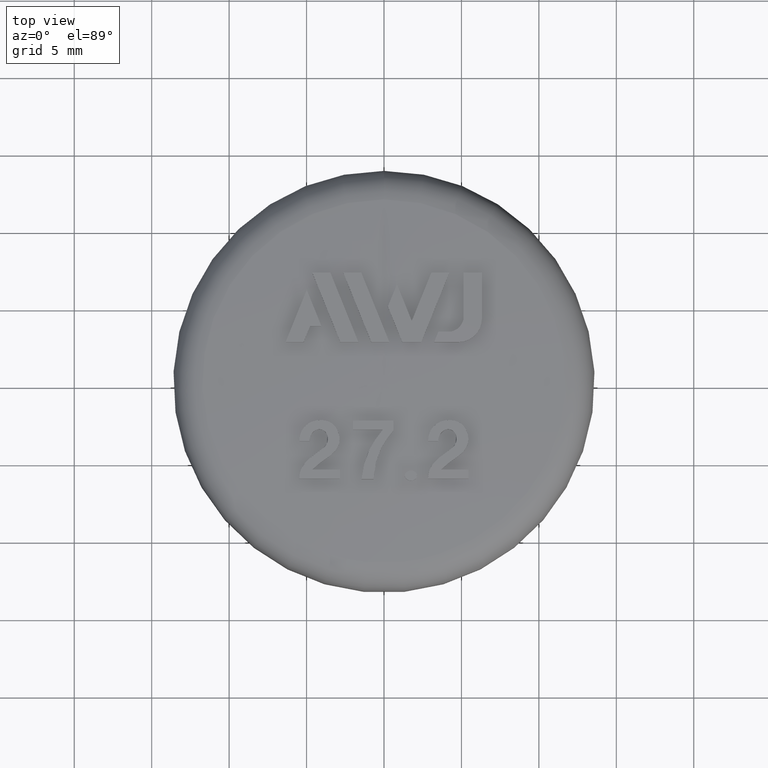
[diagram: clean part render]
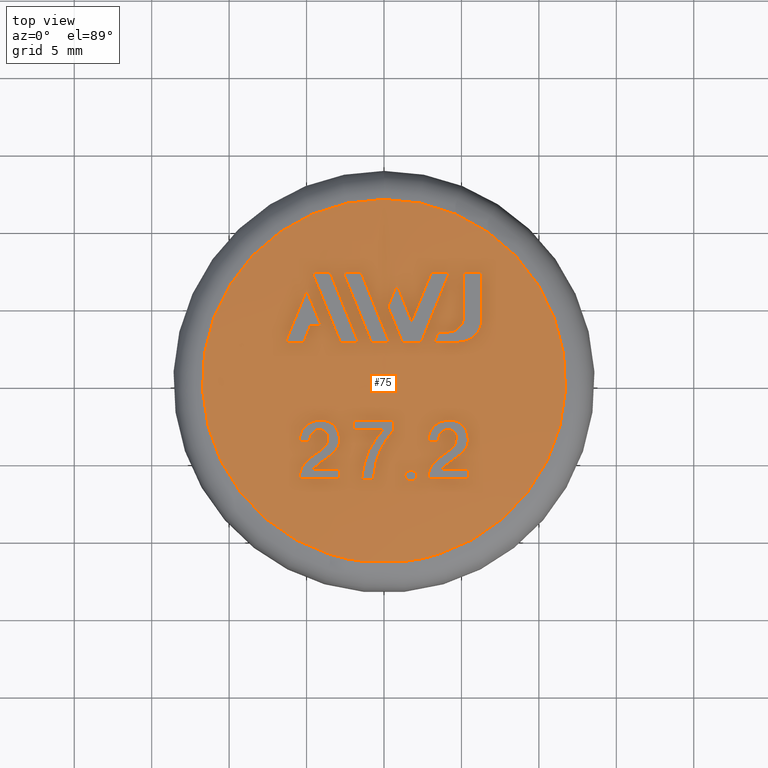
[diagram: same view with one face highlighted and labeled with its STEP entity id]
A machine part, top view. The second image highlights one B-rep face of the part: STEP entity #75.
In plain terms, the highlighted face is a freeform B-spline surface patch.
Its self-contained STEP definition (entity closure, byte-faithful):
#75 = ADVANCED_FACE( '', ( #158, #159, #160, #161, #162, #163, #164, #165, #166, #167, #168 ), #169, .T. );
#158 = FACE_BOUND( '', #356, .T. );
#159 = FACE_BOUND( '', #357, .T. );
#160 = FACE_BOUND( '', #358, .T. );
#161 = FACE_BOUND( '', #359, .T. );
#162 = FACE_BOUND( '', #360, .T. );
#163 = FACE_OUTER_BOUND( '', #361, .T. );
#164 = FACE_BOUND( '', #362, .T. );
#165 = FACE_BOUND( '', #363, .T. );
#166 = FACE_BOUND( '', #364, .T. );
#167 = FACE_BOUND( '', #365, .T. );
#168 = FACE_BOUND( '', #366, .T. );
#169 = ( B_SPLINE_SURFACE( 3, 3, ( ( #368, #369, #370, #371, #372, #373, #374 ), ( #375, #376, #377, #378, #379, #380, #381 ), ( #382, #383, #384, #385, #386, #387, #388 ), ( #389, #390, #391, #392, #393, #394, #395 ) ), .UNSPECIFIED., .F., .T., .F. )B_SPLINE_SURFACE_WITH_KNOTS( ( 4, 4 ), ( 4, 3, 4 ), ( 0.000000000000000, 6.28318530717959 ), ( -1.57186048179932, -1.53926020966131, -1.50665993752331 ), .UNSPECIFIED. )RATIONAL_B_SPLINE_SURFACE( ( ( 1.00000000000000, 0.333333333333333, 0.333333333333333, 1.00000000000000, 0.333333333333333, 0.333333333333333, 1.00000000000000 ), ( 0.999645772125968, 0.333215257375323, 0.333215257375323, 0.999645772125968, 0.333215257375323, 0.333215257375323, 0.999645772125968 ), ( 0.999645772125968, 0.333215257375323, 0.333215257375323, 0.999645772125968, 0.333215257375323, 0.333215257375323, 0.999645772125968 ), ( 1.00000000000000, 0.333333333333333, 0.333333333333333, 1.00000000000000, 0.333333333333333, 0.333333333333333, 1.00000000000000 ) ) )BOUNDED_SURFACE(  )REPRESENTATION_ITEM( '' )GEOMETRIC_REPRESENTATION_ITEM(  )SURFACE(  ) );
#356 = EDGE_LOOP( '', ( #793, #794, #795, #796 ) );
#357 = EDGE_LOOP( '', ( #797, #798, #799, #800 ) );
#358 = EDGE_LOOP( '', ( #801, #802, #803, #804, #805, #806 ) );
#359 = EDGE_LOOP( '', ( #807, #808, #809, #810, #811, #812, #813 ) );
#360 = VERTEX_LOOP( '', #814 );
#361 = EDGE_LOOP( '', ( #815 ) );
#362 = EDGE_LOOP( '', ( #816, #817, #818, #819, #820, #821 ) );
#363 = EDGE_LOOP( '', ( #822 ) );
#364 = EDGE_LOOP( '', ( #823, #824, #825, #826, #827, #828, #829 ) );
#365 = EDGE_LOOP( '', ( #830, #831, #832, #833, #834, #835, #836, #837 ) );
#366 = EDGE_LOOP( '', ( #838, #839, #840, #841, #842 ) );
#368 = CARTESIAN_POINT( '', ( 0.000000000000000, 11.7281848554535, 26.6300159274903 ) );
#369 = CARTESIAN_POINT( '', ( 23.4563697109069, 11.7281848554535, 26.6300159274903 ) );
#370 = CARTESIAN_POINT( '', ( 23.4563697109069, -11.7281848554535, 26.6300159274903 ) );
#371 = CARTESIAN_POINT( '', ( 0.000000000000000, -11.7281848554535, 26.6300159274903 ) );
#372 = CARTESIAN_POINT( '', ( -23.4563697109069, -11.7281848554535, 26.6300159274903 ) );
#373 = CARTESIAN_POINT( '', ( -23.4563697109069, 11.7281848554535, 26.6300159274903 ) );
#374 = CARTESIAN_POINT( '', ( 0.000000000000000, 11.7281848554535, 26.6300159274903 ) );
#375 = CARTESIAN_POINT( '', ( 0.000000000000000, 7.82350379679283, 26.8807920200311 ) );
#376 = CARTESIAN_POINT( '', ( 15.6470075935857, 7.82350379679283, 26.8807920200311 ) );
#377 = CARTESIAN_POINT( '', ( 15.6470075935857, -7.82350379679283, 26.8807920200311 ) );
#378 = CARTESIAN_POINT( '', ( 0.000000000000000, -7.82350379679283, 26.8807920200311 ) );
#379 = CARTESIAN_POINT( '', ( -15.6470075935857, -7.82350379679283, 26.8807920200311 ) );
#380 = CARTESIAN_POINT( '', ( -15.6470075935857, 7.82350379679283, 26.8807920200311 ) );
#381 = CARTESIAN_POINT( '', ( 0.000000000000000, 7.82350379679283, 26.8807920200311 ) );
#382 = CARTESIAN_POINT( '', ( 0.000000000000000, 3.91272353759796, 27.0041637459052 ) );
#383 = CARTESIAN_POINT( '', ( 7.82544707519592, 3.91272353759796, 27.0041637459052 ) );
#384 = CARTESIAN_POINT( '', ( 7.82544707519591, -3.91272353759796, 27.0041637459052 ) );
#385 = CARTESIAN_POINT( '', ( 0.000000000000000, -3.91272353759796, 27.0041637459052 ) );
#386 = CARTESIAN_POINT( '', ( -7.82544707519591, -3.91272353759796, 27.0041637459052 ) );
#387 = CARTESIAN_POINT( '', ( -7.82544707519592, 3.91272353759796, 27.0041637459052 ) );
#388 = CARTESIAN_POINT( '', ( 0.000000000000000, 3.91272353759796, 27.0041637459052 ) );
#389 = CARTESIAN_POINT( '', ( 0.000000000000000, -1.07064964532944E-014, 27.0000000000000 ) );
#390 = CARTESIAN_POINT( '', ( -2.20252960834999E-014, -1.07064964532944E-014, 27.0000000000000 ) );
#391 = CARTESIAN_POINT( '', ( -2.20252960834999E-014, 1.13187996302055E-014, 27.0000000000000 ) );
#392 = CARTESIAN_POINT( '', ( 0.000000000000000, 1.13187996302055E-014, 27.0000000000000 ) );
#393 = CARTESIAN_POINT( '', ( 2.20252960834999E-014, 1.13187996302055E-014, 27.0000000000000 ) );
#394 = CARTESIAN_POINT( '', ( 2.20252960834999E-014, -1.07064964532944E-014, 27.0000000000000 ) );
#395 = CARTESIAN_POINT( '', ( 0.000000000000000, -1.07064964532944E-014, 27.0000000000000 ) );
#793 = ORIENTED_EDGE( '', *, *, #1409, .F. );
#794 = ORIENTED_EDGE( '', *, *, #1410, .F. );
#795 = ORIENTED_EDGE( '', *, *, #1411, .F. );
#796 = ORIENTED_EDGE( '', *, *, #1412, .F. );
#797 = ORIENTED_EDGE( '', *, *, #1413, .F. );
#798 = ORIENTED_EDGE( '', *, *, #1414, .F. );
#799 = ORIENTED_EDGE( '', *, *, #1415, .F. );
#800 = ORIENTED_EDGE( '', *, *, #1416, .F. );
#801 = ORIENTED_EDGE( '', *, *, #1417, .F. );
#802 = ORIENTED_EDGE( '', *, *, #1418, .F. );
#803 = ORIENTED_EDGE( '', *, *, #1419, .F. );
#804 = ORIENTED_EDGE( '', *, *, #1420, .F. );
#805 = ORIENTED_EDGE( '', *, *, #1421, .F. );
#806 = ORIENTED_EDGE( '', *, *, #1422, .F. );
#807 = ORIENTED_EDGE( '', *, *, #1423, .F. );
#808 = ORIENTED_EDGE( '', *, *, #1424, .F. );
#809 = ORIENTED_EDGE( '', *, *, #1425, .F. );
#810 = ORIENTED_EDGE( '', *, *, #1426, .F. );
#811 = ORIENTED_EDGE( '', *, *, #1427, .F. );
#812 = ORIENTED_EDGE( '', *, *, #1428, .F. );
#813 = ORIENTED_EDGE( '', *, *, #1429, .F. );
#814 = VERTEX_POINT( '', #1430 );
#815 = ORIENTED_EDGE( '', *, *, #1431, .F. );
#816 = ORIENTED_EDGE( '', *, *, #1432, .F. );
#817 = ORIENTED_EDGE( '', *, *, #1433, .F. );
#818 = ORIENTED_EDGE( '', *, *, #1434, .F. );
#819 = ORIENTED_EDGE( '', *, *, #1435, .F. );
#820 = ORIENTED_EDGE( '', *, *, #1436, .F. );
#821 = ORIENTED_EDGE( '', *, *, #1437, .F. );
#822 = ORIENTED_EDGE( '', *, *, #1438, .F. );
#823 = ORIENTED_EDGE( '', *, *, #1439, .F. );
#824 = ORIENTED_EDGE( '', *, *, #1440, .F. );
#825 = ORIENTED_EDGE( '', *, *, #1441, .F. );
#826 = ORIENTED_EDGE( '', *, *, #1442, .F. );
#827 = ORIENTED_EDGE( '', *, *, #1443, .F. );
#828 = ORIENTED_EDGE( '', *, *, #1444, .F. );
#829 = ORIENTED_EDGE( '', *, *, #1445, .F. );
#830 = ORIENTED_EDGE( '', *, *, #1446, .F. );
#831 = ORIENTED_EDGE( '', *, *, #1447, .F. );
#832 = ORIENTED_EDGE( '', *, *, #1448, .F. );
#833 = ORIENTED_EDGE( '', *, *, #1449, .F. );
#834 = ORIENTED_EDGE( '', *, *, #1450, .F. );
#835 = ORIENTED_EDGE( '', *, *, #1451, .F. );
#836 = ORIENTED_EDGE( '', *, *, #1452, .F. );
#837 = ORIENTED_EDGE( '', *, *, #1453, .F. );
#838 = ORIENTED_EDGE( '', *, *, #1454, .F. );
#839 = ORIENTED_EDGE( '', *, *, #1455, .F. );
#840 = ORIENTED_EDGE( '', *, *, #1456, .F. );
#841 = ORIENTED_EDGE( '', *, *, #1457, .F. );
#842 = ORIENTED_EDGE( '', *, *, #1458, .F. );
#1409 = EDGE_CURVE( '', #1577, #1578, #1579, .T. );
#1410 = EDGE_CURVE( '', #1580, #1577, #1581, .T. );
#1411 = EDGE_CURVE( '', #1582, #1580, #1583, .T. );
#1412 = EDGE_CURVE( '', #1578, #1582, #1584, .T. );
#1413 = EDGE_CURVE( '', #1585, #1586, #1587, .T. );
#1414 = EDGE_CURVE( '', #1588, #1585, #1589, .T. );
#1415 = EDGE_CURVE( '', #1590, #1588, #1591, .T. );
#1416 = EDGE_CURVE( '', #1586, #1590, #1592, .T. );
#1417 = EDGE_CURVE( '', #1593, #1594, #1595, .T. );
#1418 = EDGE_CURVE( '', #1596, #1593, #1597, .T. );
#1419 = EDGE_CURVE( '', #1598, #1596, #1599, .T. );
#1420 = EDGE_CURVE( '', #1600, #1598, #1601, .T. );
#1421 = EDGE_CURVE( '', #1602, #1600, #1603, .T. );
#1422 = EDGE_CURVE( '', #1594, #1602, #1604, .T. );
#1423 = EDGE_CURVE( '', #1605, #1606, #1607, .T. );
#1424 = EDGE_CURVE( '', #1608, #1605, #1609, .T. );
#1425 = EDGE_CURVE( '', #1610, #1608, #1611, .T. );
#1426 = EDGE_CURVE( '', #1612, #1610, #1613, .T. );
#1427 = EDGE_CURVE( '', #1614, #1612, #1615, .T. );
#1428 = EDGE_CURVE( '', #1616, #1614, #1617, .T. );
#1429 = EDGE_CURVE( '', #1606, #1616, #1618, .T. );
#1430 = CARTESIAN_POINT( '', ( 2.71050543121376E-016, 3.06151588455592E-016, 26.9999999999999 ) );
#1431 = EDGE_CURVE( '', #1619, #1619, #1620, .T. );
#1432 = EDGE_CURVE( '', #1621, #1622, #1623, .T. );
#1433 = EDGE_CURVE( '', #1624, #1621, #1625, .T. );
#1434 = EDGE_CURVE( '', #1626, #1624, #1627, .T. );
#1435 = EDGE_CURVE( '', #1628, #1626, #1629, .T. );
#1436 = EDGE_CURVE( '', #1630, #1628, #1631, .T. );
#1437 = EDGE_CURVE( '', #1622, #1630, #1632, .T. );
#1438 = EDGE_CURVE( '', #1633, #1633, #1634, .T. );
#1439 = EDGE_CURVE( '', #1635, #1636, #1637, .T. );
#1440 = EDGE_CURVE( '', #1638, #1635, #1639, .T. );
#1441 = EDGE_CURVE( '', #1640, #1638, #1641, .T. );
#1442 = EDGE_CURVE( '', #1642, #1640, #1643, .T. );
#1443 = EDGE_CURVE( '', #1644, #1642, #1645, .T. );
#1444 = EDGE_CURVE( '', #1646, #1644, #1647, .T. );
#1445 = EDGE_CURVE( '', #1636, #1646, #1648, .T. );
#1446 = EDGE_CURVE( '', #1649, #1650, #1651, .T. );
#1447 = EDGE_CURVE( '', #1652, #1649, #1653, .T. );
#1448 = EDGE_CURVE( '', #1654, #1652, #1655, .T. );
#1449 = EDGE_CURVE( '', #1656, #1654, #1657, .T. );
#1450 = EDGE_CURVE( '', #1658, #1656, #1659, .T. );
#1451 = EDGE_CURVE( '', #1660, #1658, #1661, .T. );
#1452 = EDGE_CURVE( '', #1662, #1660, #1663, .T. );
#1453 = EDGE_CURVE( '', #1650, #1662, #1664, .T. );
#1454 = EDGE_CURVE( '', #1665, #1666, #1667, .T. );
#1455 = EDGE_CURVE( '', #1668, #1665, #1669, .T. );
#1456 = EDGE_CURVE( '', #1670, #1668, #1671, .T. );
#1457 = EDGE_CURVE( '', #1672, #1670, #1673, .T. );
#1458 = EDGE_CURVE( '', #1666, #1672, #1674, .T. );
#1577 = VERTEX_POINT( '', #1864 );
#1578 = VERTEX_POINT( '', #1865 );
#1579 = B_SPLINE_CURVE_WITH_KNOTS( '', 3, ( #1866, #1867, #1868, #1869, #1870, #1871 ), .UNSPECIFIED., .F., .F., ( 4, 2, 4 ), ( 1.14099547276501, 1.14157647244155, 1.14215747211810 ), .UNSPECIFIED. );
#1580 = VERTEX_POINT( '', #1872 );
#1581 = B_SPLINE_CURVE_WITH_KNOTS( '', 3, ( #1873, #1874, #1875, #1876 ), .UNSPECIFIED., .F., .F., ( 4, 4 ), ( 2.15867422029699E-007, 0.00485191291443829 ), .UNSPECIFIED. );
#1582 = VERTEX_POINT( '', #1877 );
#1583 = B_SPLINE_CURVE_WITH_KNOTS( '', 3, ( #1878, #1879, #1880, #1881, #1882, #1883 ), .UNSPECIFIED., .F., .F., ( 4, 2, 4 ), ( 1.14019405196238, 1.14077496422805, 1.14135587649371 ), .UNSPECIFIED. );
#1584 = B_SPLINE_CURVE_WITH_KNOTS( '', 3, ( #1884, #1885, #1886, #1887 ), .UNSPECIFIED., .F., .F., ( 4, 4 ), ( 2.15718634684404E-007, 0.00485171706346256 ), .UNSPECIFIED. );
#1585 = VERTEX_POINT( '', #1888 );
#1586 = VERTEX_POINT( '', #1889 );
#1587 = B_SPLINE_CURVE_WITH_KNOTS( '', 3, ( #1890, #1891, #1892, #1893, #1894, #1895 ), .UNSPECIFIED., .F., .F., ( 4, 2, 4 ), ( 1.14113022819323, 1.14171118001173, 1.14229213183023 ), .UNSPECIFIED. );
#1588 = VERTEX_POINT( '', #1896 );
#1589 = B_SPLINE_CURVE_WITH_KNOTS( '', 3, ( #1897, #1898, #1899, #1900 ), .UNSPECIFIED., .F., .F., ( 4, 4 ), ( 2.15901723080538E-007, 0.00485241205802958 ), .UNSPECIFIED. );
#1590 = VERTEX_POINT( '', #1901 );
#1591 = B_SPLINE_CURVE_WITH_KNOTS( '', 3, ( #1902, #1903, #1904, #1905, #1906, #1907 ), .UNSPECIFIED., .F., .F., ( 4, 2, 4 ), ( 1.14010551430189, 1.14068633246649, 1.14126715063110 ), .UNSPECIFIED. );
#1592 = B_SPLINE_CURVE_WITH_KNOTS( '', 3, ( #1908, #1909, #1910, #1911 ), .UNSPECIFIED., .F., .F., ( 4, 4 ), ( 2.15727921196753E-007, 0.00485221373380524 ), .UNSPECIFIED. );
#1593 = VERTEX_POINT( '', #1912 );
#1594 = VERTEX_POINT( '', #1913 );
#1595 = B_SPLINE_CURVE_WITH_KNOTS( '', 3, ( #1914, #1915, #1916, #1917, #1918, #1919 ), .UNSPECIFIED., .F., .F., ( 4, 2, 4 ), ( 1.14026486719021, 1.14114863943153, 1.14203241167285 ), .UNSPECIFIED. );
#1596 = VERTEX_POINT( '', #1920 );
#1597 = B_SPLINE_CURVE_WITH_KNOTS( '', 3, ( #1921, #1922, #1923, #1924, #1925, #1926 ), .UNSPECIFIED., .F., .F., ( 4, 2, 4 ), ( 1.14081843037887, 1.14111851285053, 1.14141859532219 ), .UNSPECIFIED. );
#1598 = VERTEX_POINT( '', #1927 );
#1599 = B_SPLINE_CURVE_WITH_KNOTS( '', 3, ( #1928, #1929, #1930, #1931, #1932, #1933 ), .UNSPECIFIED., .F., .F., ( 4, 2, 4 ), ( 1.13958286962383, 1.14089205598085, 1.14220124233787 ), .UNSPECIFIED. );
#1600 = VERTEX_POINT( '', #1934 );
#1601 = B_SPLINE_CURVE_WITH_KNOTS( '', 3, ( #1935, #1936, #1937, #1938, #1939, #1940, #1941, #1942, #1943, #1944, #1945, #1946, #1947, #1948, #1949, #1950, #1951, #1952, #1953, #1954, #1955, #1956, #1957, #1958, #1959, #1960, #1961, #1962, #1963, #1964, #1965, #1966, #1967, #1968 ), .UNSPECIFIED., .F., .F., ( 4, 2, 2, 2, 2, 2, 2, 2, 2, 2, 2, 2, 2, 2, 2, 2, 4 ), ( 0.000000000000000, 0.000331341319824715, 0.000662682639649429, 0.000828353299561787, 0.000994023959474144, 0.00115969461938650, 0.00132536527929886, 0.00165670659912357, 0.00198804791894829, 0.00231938923877300, 0.00265073055859772, 0.00298207187842243, 0.00331341319824715, 0.00397609583789658, 0.00463877847754601, 0.00497011979737072, 0.00530146111719544 ), .UNSPECIFIED. );
#1602 = VERTEX_POINT( '', #1969 );
#1603 = B_SPLINE_CURVE_WITH_KNOTS( '', 3, ( #1970, #1971, #1972, #1973, #1974, #1975 ), .UNSPECIFIED., .F., .F., ( 4, 2, 4 ), ( 1.14115631044754, 1.14148361211489, 1.14181091378225 ), .UNSPECIFIED. );
#1604 = B_SPLINE_CURVE_WITH_KNOTS( '', 3, ( #1976, #1977, #1978, #1979, #1980, #1981, #1982, #1983, #1984, #1985, #1986, #1987, #1988, #1989, #1990, #1991, #1992, #1993, #1994, #1995, #1996, #1997, #1998, #1999, #2000, #2001, #2002, #2003, #2004, #2005, #2006, #2007, #2008, #2009, #2010, #2011 ), .UNSPECIFIED., .F., .F., ( 4, 2, 2, 2, 2, 2, 2, 2, 2, 2, 2, 2, 2, 2, 2, 2, 2, 4 ), ( 0.000000000000000, 0.000212615317340773, 0.000425230634681545, 0.000850461269363092, 0.00127569190404464, 0.00170092253872619, 0.00212615317340773, 0.00255138380808928, 0.00297661444277083, 0.00340184507745237, 0.00382707571213392, 0.00425230634681546, 0.00467753698149701, 0.00510276761617856, 0.00552799825086010, 0.00595322888554165, 0.00637845952022319, 0.00680369015490474 ), .UNSPECIFIED. );
#1605 = VERTEX_POINT( '', #2012 );
#1606 = VERTEX_POINT( '', #2013 );
#1607 = B_SPLINE_CURVE_WITH_KNOTS( '', 3, ( #2014, #2015, #2016, #2017, #2018, #2019 ), .UNSPECIFIED., .F., .F., ( 4, 2, 4 ), ( 1.14039061583052, 1.14169968046054, 1.14300874509055 ), .UNSPECIFIED. );
#1608 = VERTEX_POINT( '', #2020 );
#1609 = B_SPLINE_CURVE_WITH_KNOTS( '', 3, ( #2021, #2022, #2023, #2024, #2025, #2026 ), .UNSPECIFIED., .F., .F., ( 4, 2, 4 ), ( 1.14150941117867, 1.14182760379185, 1.14214579640504 ), .UNSPECIFIED. );
#1610 = VERTEX_POINT( '', #2027 );
#1611 = B_SPLINE_CURVE_WITH_KNOTS( '', 3, ( #2028, #2029, #2030, #2031, #2032, #2033, #2034, #2035, #2036, #2037 ), .UNSPECIFIED., .F., .F., ( 4, 2, 2, 2, 4 ), ( 0.000000000000000, 0.000864470502193360, 0.00172894100438672, 0.00259341150658008, 0.00345788200877344 ), .UNSPECIFIED. );
#1612 = VERTEX_POINT( '', #2038 );
#1613 = B_SPLINE_CURVE_WITH_KNOTS( '', 3, ( #2039, #2040, #2041, #2042, #2043, #2044 ), .UNSPECIFIED., .F., .F., ( 4, 2, 4 ), ( 1.14062349595876, 1.14100528057695, 1.14138706519514 ), .UNSPECIFIED. );
#1614 = VERTEX_POINT( '', #2045 );
#1615 = B_SPLINE_CURVE_WITH_KNOTS( '', 3, ( #2046, #2047, #2048, #2049, #2050, #2051, #2052, #2053, #2054, #2055 ), .UNSPECIFIED., .F., .F., ( 4, 2, 2, 2, 4 ), ( 0.000000000000000, 0.000884294727512186, 0.00176858945502437, 0.00265288418253655, 0.00353717891004874 ), .UNSPECIFIED. );
#1616 = VERTEX_POINT( '', #2056 );
#1617 = B_SPLINE_CURVE_WITH_KNOTS( '', 3, ( #2057, #2058, #2059, #2060, #2061, #2062 ), .UNSPECIFIED., .F., .F., ( 4, 2, 4 ), ( 1.14067115889821, 1.14163115111688, 1.14259114333555 ), .UNSPECIFIED. );
#1618 = B_SPLINE_CURVE_WITH_KNOTS( '', 3, ( #2063, #2064, #2065, #2066, #2067, #2068 ), .UNSPECIFIED., .F., .F., ( 4, 2, 4 ), ( 1.14204511110763, 1.14234513701329, 1.14264516291895 ), .UNSPECIFIED. );
#1619 = VERTEX_POINT( '', #2069 );
#1620 = CIRCLE( '', #2070, 11.7281848554534 );
#1621 = VERTEX_POINT( '', #2071 );
#1622 = VERTEX_POINT( '', #2072 );
#1623 = B_SPLINE_CURVE_WITH_KNOTS( '', 3, ( #2073, #2074, #2075, #2076, #2077, #2078 ), .UNSPECIFIED., .F., .F., ( 4, 2, 4 ), ( 1.14017080191336, 1.14105448654350, 1.14193817117363 ), .UNSPECIFIED. );
#1624 = VERTEX_POINT( '', #2079 );
#1625 = B_SPLINE_CURVE_WITH_KNOTS( '', 3, ( #2080, #2081, #2082, #2083, #2084, #2085 ), .UNSPECIFIED., .F., .F., ( 4, 2, 4 ), ( 1.14135849714208, 1.14165860806391, 1.14195871898575 ), .UNSPECIFIED. );
#1626 = VERTEX_POINT( '', #2086 );
#1627 = B_SPLINE_CURVE_WITH_KNOTS( '', 3, ( #2087, #2088, #2089, #2090, #2091, #2092 ), .UNSPECIFIED., .F., .F., ( 4, 2, 4 ), ( 1.13968365462958, 1.14099290571856, 1.14230215680753 ), .UNSPECIFIED. );
#1628 = VERTEX_POINT( '', #2093 );
#1629 = B_SPLINE_CURVE_WITH_KNOTS( '', 3, ( #2094, #2095, #2096, #2097, #2098, #2099, #2100, #2101, #2102, #2103, #2104, #2105, #2106, #2107, #2108, #2109, #2110, #2111, #2112, #2113, #2114, #2115, #2116, #2117, #2118, #2119, #2120, #2121, #2122, #2123, #2124, #2125, #2126, #2127 ), .UNSPECIFIED., .F., .F., ( 4, 2, 2, 2, 2, 2, 2, 2, 2, 2, 2, 2, 2, 2, 2, 2, 4 ), ( 0.000000000000000, 0.000331438807842054, 0.000662877615684108, 0.000828597019605135, 0.000994316423526162, 0.00116003582744719, 0.00132575523136822, 0.00165719403921027, 0.00198863284705233, 0.00232007165489438, 0.00265151046273644, 0.00298294927057849, 0.00331438807842055, 0.00397726569410466, 0.00464014330978877, 0.00497158211763083, 0.00530302092547289 ), .UNSPECIFIED. );
#1630 = VERTEX_POINT( '', #2128 );
#1631 = B_SPLINE_CURVE_WITH_KNOTS( '', 3, ( #2129, #2130, #2131, #2132, #2133 ), .UNSPECIFIED., .F., .F., ( 4, 1, 4 ), ( 1.14130113594015, 1.14162848804639, 1.14195584015262 ), .UNSPECIFIED. );
#1632 = B_SPLINE_CURVE_WITH_KNOTS( '', 3, ( #2134, #2135, #2136, #2137, #2138, #2139, #2140, #2141, #2142, #2143, #2144, #2145, #2146, #2147, #2148, #2149, #2150, #2151, #2152, #2153, #2154, #2155, #2156, #2157, #2158, #2159, #2160, #2161, #2162, #2163, #2164, #2165, #2166, #2167, #2168, #2169 ), .UNSPECIFIED., .F., .F., ( 4, 2, 2, 2, 2, 2, 2, 2, 2, 2, 2, 2, 2, 2, 2, 2, 2, 4 ), ( 0.000000000000000, 0.000212627677199209, 0.000425255354398419, 0.000850510708796837, 0.00127576606319526, 0.00170102141759368, 0.00212627677199209, 0.00255153212639051, 0.00297678748078893, 0.00340204283518735, 0.00382729818958577, 0.00425255354398419, 0.00467780889838261, 0.00510306425278103, 0.00552831960717945, 0.00595357496157787, 0.00637883031597629, 0.00680408567037471 ), .UNSPECIFIED. );
#1633 = VERTEX_POINT( '', #2170 );
#1634 = B_SPLINE_CURVE_WITH_KNOTS( '', 3, ( #2171, #2172, #2173, #2174, #2175, #2176, #2177, #2178, #2179, #2180, #2181, #2182, #2183, #2184, #2185, #2186, #2187, #2188, #2189, #2190, #2191, #2192, #2193, #2194, #2195, #2196 ), .UNSPECIFIED., .T., .F., ( 2, 2, 2, 2, 2, 2, 2, 2, 2, 2, 2, 2, 2, 2, 2 ), ( -0.000280046628246699, 0.000000000000000, 0.000280046628246698, 0.000420069942370048, 0.000560093256493397, 0.000700116570616747, 0.000840139884740097, 0.00112018651298680, 0.00140023314123349, 0.00154025645535684, 0.00168027976948019, 0.00182030308360354, 0.00196032639772689, 0.00224037302597359, 0.00252041965422029 ), .UNSPECIFIED. );
#1635 = VERTEX_POINT( '', #2197 );
#1636 = VERTEX_POINT( '', #2198 );
#1637 = B_SPLINE_CURVE_WITH_KNOTS( '', 3, ( #2199, #2200, #2201, #2202 ), .UNSPECIFIED., .F., .F., ( 4, 4 ), ( 2.15726286514402E-007, 0.00485230481233965 ), .UNSPECIFIED. );
#1638 = VERTEX_POINT( '', #2203 );
#1639 = B_SPLINE_CURVE_WITH_KNOTS( '', 3, ( #2204, #2205, #2206, #2207, #2208, #2209 ), .UNSPECIFIED., .F., .F., ( 4, 2, 4 ), ( 1.14094228652273, 1.14155644501944, 1.14217060351615 ), .UNSPECIFIED. );
#1640 = VERTEX_POINT( '', #2210 );
#1641 = B_SPLINE_CURVE_WITH_KNOTS( '', 3, ( #2211, #2212, #2213, #2214 ), .UNSPECIFIED., .F., .F., ( 4, 4 ), ( 2.15765317635410E-007, 0.00247147472456960 ), .UNSPECIFIED. );
#1642 = VERTEX_POINT( '', #2215 );
#1643 = B_SPLINE_CURVE_WITH_KNOTS( '', 3, ( #2216, #2217, #2218, #2219 ), .UNSPECIFIED., .F., .F., ( 4, 4 ), ( 2.15815704263154E-007, 0.00155203291240288 ), .UNSPECIFIED. );
#1644 = VERTEX_POINT( '', #2220 );
#1645 = B_SPLINE_CURVE_WITH_KNOTS( '', 3, ( #2221, #2222, #2223, #2224 ), .UNSPECIFIED., .F., .F., ( 4, 4 ), ( 2.15728689356056E-007, 0.00256026051000908 ), .UNSPECIFIED. );
#1646 = VERTEX_POINT( '', #2225 );
#1647 = B_SPLINE_CURVE_WITH_KNOTS( '', 3, ( #2226, #2227, #2228, #2229 ), .UNSPECIFIED., .F., .F., ( 4, 4 ), ( 2.15885538280490E-007, 0.00338915119880426 ), .UNSPECIFIED. );
#1648 = B_SPLINE_CURVE_WITH_KNOTS( '', 3, ( #2230, #2231, #2232, #2233, #2234, #2235 ), .UNSPECIFIED., .F., .F., ( 4, 2, 4 ), ( 1.14020928932076, 1.14079027816866, 1.14137126701656 ), .UNSPECIFIED. );
#1649 = VERTEX_POINT( '', #2236 );
#1650 = VERTEX_POINT( '', #2237 );
#1651 = B_SPLINE_CURVE_WITH_KNOTS( '', 3, ( #2238, #2239, #2240, #2241, #2242, #2243 ), .UNSPECIFIED., .F., .F., ( 4, 2, 4 ), ( 1.14008674188863, 1.14067443891448, 1.14126213594034 ), .UNSPECIFIED. );
#1652 = VERTEX_POINT( '', #2244 );
#1653 = B_SPLINE_CURVE_WITH_KNOTS( '', 3, ( #2245, #2246, #2247, #2248, #2249, #2250 ), .UNSPECIFIED., .F., .F., ( 4, 2, 4 ), ( 1.13930719863313, 1.14080589519083, 1.14230459174853 ), .UNSPECIFIED. );
#1654 = VERTEX_POINT( '', #2251 );
#1655 = B_SPLINE_CURVE_WITH_KNOTS( '', 3, ( #2252, #2253, #2254, #2255, #2256, #2257, #2258, #2259, #2260, #2261, #2262, #2263, #2264, #2265 ), .UNSPECIFIED., .F., .F., ( 4, 2, 2, 2, 2, 2, 4 ), ( 8.41091123758016E-005, 0.000377473856846313, 0.000670838601316824, 0.00125756809025784, 0.00184429757919886, 0.00213766232366937, 0.00243102706813988 ), .UNSPECIFIED. );
#1656 = VERTEX_POINT( '', #2266 );
#1657 = B_SPLINE_CURVE_WITH_KNOTS( '', 3, ( #2267, #2268, #2269, #2270, #2271, #2272 ), .UNSPECIFIED., .F., .F., ( 4, 2, 4 ), ( 1.14087944867635, 1.14166865456309, 1.14245786044983 ), .UNSPECIFIED. );
#1658 = VERTEX_POINT( '', #2273 );
#1659 = B_SPLINE_CURVE_WITH_KNOTS( '', 3, ( #2274, #2275, #2276, #2277 ), .UNSPECIFIED., .F., .F., ( 4, 4 ), ( 2.15761539984575E-007, 0.000705626833220384 ), .UNSPECIFIED. );
#1660 = VERTEX_POINT( '', #2278 );
#1661 = B_SPLINE_CURVE_WITH_KNOTS( '', 3, ( #2279, #2280, #2281, #2282, #2283, #2284 ), .UNSPECIFIED., .F., .F., ( 4, 2, 4 ), ( 1.14154924908100, 1.14186865486673, 1.14218806065246 ), .UNSPECIFIED. );
#1662 = VERTEX_POINT( '', #2285 );
#1663 = B_SPLINE_CURVE_WITH_KNOTS( '', 3, ( #2286, #2287, #2288, #2289, #2290, #2291, #2292, #2293, #2294, #2295 ), .UNSPECIFIED., .F., .F., ( 4, 2, 2, 2, 4 ), ( 5.61207041967817E-005, 0.000447252842057361, 0.000838384979917941, 0.00122951711777852, 0.00162064925563910 ), .UNSPECIFIED. );
#1664 = B_SPLINE_CURVE_WITH_KNOTS( '', 3, ( #2296, #2297, #2298, #2299, #2300, #2301 ), .UNSPECIFIED., .F., .F., ( 4, 2, 4 ), ( 1.13982348348660, 1.14124534208723, 1.14266720068787 ), .UNSPECIFIED. );
#1665 = VERTEX_POINT( '', #2302 );
#1666 = VERTEX_POINT( '', #2303 );
#1667 = B_SPLINE_CURVE_WITH_KNOTS( '', 3, ( #2304, #2305, #2306, #2307 ), .UNSPECIFIED., .F., .F., ( 4, 4 ), ( 2.15733042070133E-007, 0.00363660816513634 ), .UNSPECIFIED. );
#1668 = VERTEX_POINT( '', #2308 );
#1669 = B_SPLINE_CURVE_WITH_KNOTS( '', 3, ( #2309, #2310, #2311, #2312 ), .UNSPECIFIED., .F., .F., ( 4, 4 ), ( 2.15759037530847E-007, 0.00251755786522169 ), .UNSPECIFIED. );
#1670 = VERTEX_POINT( '', #2313 );
#1671 = B_SPLINE_CURVE_WITH_KNOTS( '', 3, ( #2314, #2315, #2316, #2317, #2318, #2319 ), .UNSPECIFIED., .F., .F., ( 4, 2, 4 ), ( 1.14129024592551, 1.14165160581267, 1.14201296569984 ), .UNSPECIFIED. );
#1672 = VERTEX_POINT( '', #2320 );
#1673 = B_SPLINE_CURVE_WITH_KNOTS( '', 3, ( #2321, #2322, #2323, #2324 ), .UNSPECIFIED., .F., .F., ( 4, 4 ), ( 2.15728429268017E-007, 0.00112047585222695 ), .UNSPECIFIED. );
#1674 = B_SPLINE_CURVE_WITH_KNOTS( '', 3, ( #2325, #2326, #2327, #2328, #2329 ), .UNSPECIFIED., .F., .F., ( 4, 1, 4 ), ( 1.14133550468131, 1.14191653144305, 1.14249755820480 ), .UNSPECIFIED. );
#1864 = CARTESIAN_POINT( '', ( -0.821505500000000, 2.50000000000000, 26.9835638260557 ) );
#1865 = CARTESIAN_POINT( '', ( 0.340474500000001, 2.50000000000000, 26.9850011931164 ) );
#1866 = CARTESIAN_POINT( '', ( -0.821505499999903, 2.50000000000000, 26.9835638260557 ) );
#1867 = CARTESIAN_POINT( '', ( -0.627867777409866, 2.50000000000000, 26.9843833204131 ) );
#1868 = CARTESIAN_POINT( '', ( -0.434202981020857, 2.50000000000000, 26.9849111471466 ) );
#1869 = CARTESIAN_POINT( '', ( -0.0468619564231430, 2.50000000000000, 26.9853893115636 ) );
#1870 = CARTESIAN_POINT( '', ( 0.146807033702537, 2.50000000000000, 26.9853397374502 ) );
#1871 = CARTESIAN_POINT( '', ( 0.340474500000001, 2.50000000000000, 26.9850011931164 ) );
#1872 = CARTESIAN_POINT( '', ( -2.63848749999999, 6.99670800000000, 26.8525760005212 ) );
#1873 = CARTESIAN_POINT( '', ( -2.63848749999999, 6.99670800000000, 26.8525760005211 ) );
#1874 = CARTESIAN_POINT( '', ( -2.03304729774225, 5.49835094362079, 26.9180271221609 ) );
#1875 = CARTESIAN_POINT( '', ( -1.42738661489419, 3.99944823690805, 26.9616881314644 ) );
#1876 = CARTESIAN_POINT( '', ( -0.821505500000000, 2.50000000000000, 26.9835638260557 ) );
#1877 = CARTESIAN_POINT( '', ( -1.47650799999986, 6.99670800000000, 26.8655203655590 ) );
#1878 = CARTESIAN_POINT( '', ( -1.47650799999986, 6.99670800000000, 26.8655203655590 ) );
#1879 = CARTESIAN_POINT( '', ( -1.67018175376387, 6.99670800000001, 26.8639730929095 ) );
#1880 = CARTESIAN_POINT( '', ( -1.86385379958129, 6.99670800000001, 26.8621210326925 ) );
#1881 = CARTESIAN_POINT( '', ( -2.25119447002448, 6.99670800000000, 26.8578063915929 ) );
#1882 = CARTESIAN_POINT( '', ( -2.44484255012335, 6.99670800000000, 26.8553440570228 ) );
#1883 = CARTESIAN_POINT( '', ( -2.63848749999999, 6.99670800000000, 26.8525760005211 ) );
#1884 = CARTESIAN_POINT( '', ( 0.340474500000001, 2.50000000000000, 26.9850011931163 ) );
#1885 = CARTESIAN_POINT( '', ( -0.265359003801692, 3.99932999531537, 26.9668155157672 ) );
#1886 = CARTESIAN_POINT( '', ( -0.871075150948415, 5.49836955381627, 26.9270808303865 ) );
#1887 = CARTESIAN_POINT( '', ( -1.47650799999998, 6.99670799999996, 26.8655203655590 ) );
#1888 = CARTESIAN_POINT( '', ( -2.81951850000000, 2.50000000000000, 26.9645629214057 ) );
#1889 = CARTESIAN_POINT( '', ( -1.65762150000000, 2.50000000000000, 26.9781970890383 ) );
#1890 = CARTESIAN_POINT( '', ( -2.81951849999998, 2.50000000000000, 26.9645629214057 ) );
#1891 = CARTESIAN_POINT( '', ( -2.62588245872032, 2.50000000000000, 26.9674424237783 ) );
#1892 = CARTESIAN_POINT( '', ( -2.43220331133710, 2.50000000000000, 26.9700168075930 ) );
#1893 = CARTESIAN_POINT( '', ( -2.04491372813630, 2.50000000000000, 26.9745590844070 ) );
#1894 = CARTESIAN_POINT( '', ( -1.85126805100318, 2.50000000000000, 26.9765274696189 ) );
#1895 = CARTESIAN_POINT( '', ( -1.65762150000000, 2.50000000000000, 26.9781970890383 ) );
#1896 = CARTESIAN_POINT( '', ( -4.63624549999999, 6.99670800000001, 26.8131439348730 ) );
#1897 = CARTESIAN_POINT( '', ( -4.63624549999999, 6.99670800000001, 26.8131439348731 ) );
#1898 = CARTESIAN_POINT( '', ( -4.03092417525408, 5.49843487280172, 26.8853640366116 ) );
#1899 = CARTESIAN_POINT( '', ( -3.42534786228328, 3.99953060642251, 26.9357817709032 ) );
#1900 = CARTESIAN_POINT( '', ( -2.81951850000000, 2.50000000000000, 26.9645629214057 ) );
#1901 = CARTESIAN_POINT( '', ( -3.47460400000006, 6.99670800000001, 26.8387219197436 ) );
#1902 = CARTESIAN_POINT( '', ( -3.47460400000006, 6.99670800000001, 26.8387219197436 ) );
#1903 = CARTESIAN_POINT( '', ( -3.66822773668117, 6.99670800000001, 26.8350727051156 ) );
#1904 = CARTESIAN_POINT( '', ( -3.86184809314907, 6.99670800000001, 26.8311168953610 ) );
#1905 = CARTESIAN_POINT( '', ( -4.24908203164777, 6.99670800000000, 26.8225908147923 ) );
#1906 = CARTESIAN_POINT( '', ( -4.44266563818837, 6.99670800000000, 26.8180212340143 ) );
#1907 = CARTESIAN_POINT( '', ( -4.63624549999999, 6.99670800000001, 26.8131439348730 ) );
#1908 = CARTESIAN_POINT( '', ( -1.65762150000000, 2.50000000000000, 26.9781970890383 ) );
#1909 = CARTESIAN_POINT( '', ( -2.26349094032709, 3.99941893181381, 26.9534754980889 ) );
#1910 = CARTESIAN_POINT( '', ( -2.86920379873053, 5.49845035126095, 26.9069930242399 ) );
#1911 = CARTESIAN_POINT( '', ( -3.47460400000000, 6.99670800000003, 26.8387219197436 ) );
#1912 = CARTESIAN_POINT( '', ( 5.46545454545455, -5.72727272727273, 26.8342568662026 ) );
#1913 = CARTESIAN_POINT( '', ( 3.69818181818182, -5.72727272727273, 26.8781074108145 ) );
#1914 = CARTESIAN_POINT( '', ( 5.46545454545453, -5.72727272727273, 26.8342568662021 ) );
#1915 = CARTESIAN_POINT( '', ( 5.17097124457935, -5.72727272727273, 26.8429901489857 ) );
#1916 = CARTESIAN_POINT( '', ( 4.87642543809347, -5.72727272727273, 26.8510103554713 ) );
#1917 = CARTESIAN_POINT( '', ( 4.28730889448500, -5.72727272727273, 26.8656260913817 ) );
#1918 = CARTESIAN_POINT( '', ( 3.99274710682945, -5.72727272727273, 26.8722214834575 ) );
#1919 = CARTESIAN_POINT( '', ( 3.69818181818182, -5.72727272727273, 26.8781074108145 ) );
#1920 = CARTESIAN_POINT( '', ( 5.46545454545455, -6.32727272727269, 26.8146196362457 ) );
#1921 = CARTESIAN_POINT( '', ( 5.46545454545455, -6.32727272727269, 26.8146196362457 ) );
#1922 = CARTESIAN_POINT( '', ( 5.46545454545455, -6.22727768613650, 26.8180576287070 ) );
#1923 = CARTESIAN_POINT( '', ( 5.46545454545455, -6.12726919717423, 26.8214133770757 ) );
#1924 = CARTESIAN_POINT( '', ( 5.46545454545455, -5.92727227244905, 26.8279589601075 ) );
#1925 = CARTESIAN_POINT( '', ( 5.46545454545455, -5.82727293630407, 26.8311491644281 ) );
#1926 = CARTESIAN_POINT( '', ( 5.46545454545455, -5.72727272727272, 26.8342568662021 ) );
#1927 = CARTESIAN_POINT( '', ( 2.84727272727273, -6.32727272727273, 26.8736131344732 ) );
#1928 = CARTESIAN_POINT( '', ( 2.84727272727273, -6.32727272727273, 26.8736131344732 ) );
#1929 = CARTESIAN_POINT( '', ( 3.28370577635597, -6.32727272727273, 26.8668954231332 ) );
#1930 = CARTESIAN_POINT( '', ( 3.72012133921286, -6.32727272727273, 26.8586256669240 ) );
#1931 = CARTESIAN_POINT( '', ( 4.59291729664939, -6.32727272727273, 26.8389646837852 ) );
#1932 = CARTESIAN_POINT( '', ( 5.02921066644776, -6.32727272727272, 26.8275754750326 ) );
#1933 = CARTESIAN_POINT( '', ( 5.46545454545455, -6.32727272727273, 26.8146196362457 ) );
#1934 = CARTESIAN_POINT( '', ( 3.50181818181818, -3.89090909090909, 26.9294402428746 ) );
#1935 = CARTESIAN_POINT( '', ( 3.50181818181818, -3.89090909090909, 26.9294402428746 ) );
#1936 = CARTESIAN_POINT( '', ( 3.51100468142845, -3.77990555395164, 26.9315805724357 ) );
#1937 = CARTESIAN_POINT( '', ( 3.52972086718997, -3.67096469771456, 26.9333989839217 ) );
#1938 = CARTESIAN_POINT( '', ( 3.60500965686923, -3.46128014150067, 26.9359609245295 ) );
#1939 = CARTESIAN_POINT( '', ( 3.66377700972784, -3.36183820172527, 26.9366316664292 ) );
#1940 = CARTESIAN_POINT( '', ( 3.78684428057969, -3.25104869346827, 26.9361148293607 ) );
#1941 = CARTESIAN_POINT( '', ( 3.83400626825657, -3.22037740694426, 26.9356850045582 ) );
#1942 = CARTESIAN_POINT( '', ( 3.93464932893027, -3.17238907216697, 26.9344151211837 ) );
#1943 = CARTESIAN_POINT( '', ( 3.98671298513202, -3.15342996947884, 26.9336331956900 ) );
#1944 = CARTESIAN_POINT( '', ( 4.09605227664043, -3.13057429071224, 26.9316534431454 ) );
#1945 = CARTESIAN_POINT( '', ( 4.15249970735649, -3.12724983407702, 26.9304632754695 ) );
#1946 = CARTESIAN_POINT( '', ( 4.26353760468475, -3.14116260191278, 26.9277277210564 ) );
#1947 = CARTESIAN_POINT( '', ( 4.31732595127533, -3.15854587822040, 26.9261979881562 ) );
#1948 = CARTESIAN_POINT( '', ( 4.46730025079795, -3.23414202960327, 26.9213964163014 ) );
#1949 = CARTESIAN_POINT( '', ( 4.55110424601821, -3.31494374357769, 26.9179477705603 ) );
#1950 = CARTESIAN_POINT( '', ( 4.65628559594044, -3.51159916658736, 26.9117401518580 ) );
#1951 = CARTESIAN_POINT( '', ( 4.68261182409931, -3.62309891678631, 26.9089397882262 ) );
#1952 = CARTESIAN_POINT( '', ( 4.69047310906214, -3.84564037497442, 26.9042698509402 ) );
#1953 = CARTESIAN_POINT( '', ( 4.66675231649736, -3.95725536598552, 26.9025223056254 ) );
#1954 = CARTESIAN_POINT( '', ( 4.57090432636913, -4.15737458077654, 26.9005337901866 ) );
#1955 = CARTESIAN_POINT( '', ( 4.50027852571578, -4.24632299864363, 26.9002458027185 ) );
#1956 = CARTESIAN_POINT( '', ( 4.34074879708923, -4.39969165854894, 26.9004730535361 ) );
#1957 = CARTESIAN_POINT( '', ( 4.24854528193097, -4.46392812092496, 26.9010730801356 ) );
#1958 = CARTESIAN_POINT( '', ( 4.06772976613010, -4.59470167570624, 26.9019322782248 ) );
#1959 = CARTESIAN_POINT( '', ( 3.97729750538958, -4.66005513552639, 26.9022626309101 ) );
#1960 = CARTESIAN_POINT( '', ( 3.70592721445868, -4.85601556134541, 26.9029560888990 ) );
#1961 = CARTESIAN_POINT( '', ( 3.52088043164038, -4.98223357004549, 26.9032111923051 ) );
#1962 = CARTESIAN_POINT( '', ( 3.20377196510471, -5.29099504168926, 26.9004121670880 ) );
#1963 = CARTESIAN_POINT( '', ( 3.06593499749398, -5.47301867002601, 26.8974649207875 ) );
#1964 = CARTESIAN_POINT( '', ( 2.92957082490960, -5.77741034601091, 26.8903356213543 ) );
#1965 = CARTESIAN_POINT( '', ( 2.89515583508933, -5.88576537458634, 26.8874672818527 ) );
#1966 = CARTESIAN_POINT( '', ( 2.85289357545480, -6.10401578486169, 26.8810591192328 ) );
#1967 = CARTESIAN_POINT( '', ( 2.84434021365851, -6.21485970539453, 26.8775033741964 ) );
#1968 = CARTESIAN_POINT( '', ( 2.84727272727273, -6.32727272727273, 26.8736131344732 ) );
#1969 = CARTESIAN_POINT( '', ( 2.84727272727277, -3.89090909090909, 26.9405482917404 ) );
#1970 = CARTESIAN_POINT( '', ( 2.84727272727277, -3.89090909090909, 26.9405482917404 ) );
#1971 = CARTESIAN_POINT( '', ( 2.95636317243518, -3.89090909090909, 26.9388906867786 ) );
#1972 = CARTESIAN_POINT( '', ( 3.06545279965611, -3.89090909090909, 26.9371364303628 ) );
#1973 = CARTESIAN_POINT( '', ( 3.28363041315297, -3.89090909090909, 26.9334340164730 ) );
#1974 = CARTESIAN_POINT( '', ( 3.39272893710842, -3.89090909090909, 26.9314856688335 ) );
#1975 = CARTESIAN_POINT( '', ( 3.50181818181818, -3.89090909090909, 26.9294402428746 ) );
#1976 = CARTESIAN_POINT( '', ( 3.69818181818182, -5.72727272727273, 26.8781074108145 ) );
#1977 = CARTESIAN_POINT( '', ( 3.74352669619341, -5.67059162975824, 26.8789553476455 ) );
#1978 = CARTESIAN_POINT( '', ( 3.79492520531410, -5.62142400877337, 26.8794077819385 ) );
#1979 = CARTESIAN_POINT( '', ( 3.90021678205483, -5.52618481327127, 26.8800869694921 ) );
#1980 = CARTESIAN_POINT( '', ( 3.95467216476145, -5.48081116178723, 26.8802805356510 ) );
#1981 = CARTESIAN_POINT( '', ( 4.12067383445086, -5.34796115918158, 26.8805861326434 ) );
#1982 = CARTESIAN_POINT( '', ( 4.23514281875427, -5.26411219112007, 26.8804062214225 ) );
#1983 = CARTESIAN_POINT( '', ( 4.46508596948447, -5.09766143182780, 26.8796612165877 ) );
#1984 = CARTESIAN_POINT( '', ( 4.58102260102503, -5.01562513000854, 26.8790695142043 ) );
#1985 = CARTESIAN_POINT( '', ( 4.81479920461880, -4.85396626022993, 26.8774458603153 ) );
#1986 = CARTESIAN_POINT( '', ( 4.92946977818900, -4.77032909467511, 26.8766019321518 ) );
#1987 = CARTESIAN_POINT( '', ( 5.13540800747429, -4.57341589278962, 26.8759727733492 ) );
#1988 = CARTESIAN_POINT( '', ( 5.22716187402961, -4.46306716072461, 26.8760980504083 ) );
#1989 = CARTESIAN_POINT( '', ( 5.36879945041304, -4.21593487624898, 26.8778382980155 ) );
#1990 = CARTESIAN_POINT( '', ( 5.41686800908792, -4.08030018039864, 26.8794774968378 ) );
#1991 = CARTESIAN_POINT( '', ( 5.45581374496736, -3.79901734359295, 26.8843187885069 ) );
#1992 = CARTESIAN_POINT( '', ( 5.44675003792116, -3.65447901332347, 26.8874944293872 ) );
#1993 = CARTESIAN_POINT( '', ( 5.38540339165981, -3.37489575827672, 26.8945870391411 ) );
#1994 = CARTESIAN_POINT( '', ( 5.33709582520856, -3.24056261553517, 26.8983784226567 ) );
#1995 = CARTESIAN_POINT( '', ( 5.19830519248622, -2.98956510902759, 26.9065252041209 ) );
#1996 = CARTESIAN_POINT( '', ( 5.10700813689618, -2.87734750062308, 26.9108260563356 ) );
#1997 = CARTESIAN_POINT( '', ( 4.88254082075127, -2.70090487887805, 26.9194927393618 ) );
#1998 = CARTESIAN_POINT( '', ( 4.75135604438261, -2.63854824768420, 26.9237751099857 ) );
#1999 = CARTESIAN_POINT( '', ( 4.47792695540389, -2.56206594778705, 26.9315995551060 ) );
#2000 = CARTESIAN_POINT( '', ( 4.33510762260392, -2.54649887075649, 26.9351781470637 ) );
#2001 = CARTESIAN_POINT( '', ( 4.05041579303461, -2.54451170298179, 26.9415797419203 ) );
#2002 = CARTESIAN_POINT( '', ( 3.90795900640565, -2.56122079015486, 26.9443744561248 ) );
#2003 = CARTESIAN_POINT( '', ( 3.63381027647861, -2.64149528831820, 26.9487672451823 ) );
#2004 = CARTESIAN_POINT( '', ( 3.50516300897447, -2.70415502218768, 26.9503180848740 ) );
#2005 = CARTESIAN_POINT( '', ( 3.27202223047998, -2.86991484832976, 26.9520614430633 ) );
#2006 = CARTESIAN_POINT( '', ( 3.16880798449484, -2.96928292635447, 26.9522860095657 ) );
#2007 = CARTESIAN_POINT( '', ( 3.00138319225260, -3.20153015473433, 26.9512230960705 ) );
#2008 = CARTESIAN_POINT( '', ( 2.94082087593958, -3.33006572661730, 26.9499491431447 ) );
#2009 = CARTESIAN_POINT( '', ( 2.86315244627651, -3.60630890260639, 26.9460500361301 ) );
#2010 = CARTESIAN_POINT( '', ( 2.84727272727273, -3.74753547304511, 26.9435253380063 ) );
#2011 = CARTESIAN_POINT( '', ( 2.84727272727273, -3.89090909090909, 26.9405482917404 ) );
#2012 = CARTESIAN_POINT( '', ( 0.621818181818182, -2.56363636363636, 26.9834761934368 ) );
#2013 = CARTESIAN_POINT( '', ( -1.99636363636364, -2.56363636363631, 26.9741289010474 ) );
#2014 = CARTESIAN_POINT( '', ( 0.621818181818067, -2.56363636363636, 26.9834761934365 ) );
#2015 = CARTESIAN_POINT( '', ( 0.185492370004188, -2.56363636363636, 26.9848741815743 ) );
#2016 = CARTESIAN_POINT( '', ( -0.250926972466443, -2.56363636363636, 26.9848014537600 ) );
#2017 = CARTESIAN_POINT( '', ( -1.12371761974091, -2.56363636363636, 26.9817089676172 ) );
#2018 = CARTESIAN_POINT( '', ( -1.56003252740399, -2.56363636363636, 26.9786835838581 ) );
#2019 = CARTESIAN_POINT( '', ( -1.99636363636364, -2.56363636363636, 26.9741289010474 ) );
#2020 = CARTESIAN_POINT( '', ( 0.621818181818182, -3.19999999999994, 26.9739485968926 ) );
#2021 = CARTESIAN_POINT( '', ( 0.621818181818182, -3.19999999999994, 26.9739485968926 ) );
#2022 = CARTESIAN_POINT( '', ( 0.621818181818182, -3.09394045314152, 26.9757235664044 ) );
#2023 = CARTESIAN_POINT( '', ( 0.621818181818182, -2.98786060907522, 26.9774052692383 ) );
#2024 = CARTESIAN_POINT( '', ( 0.621818181818182, -2.77574948903594, 26.9805809054759 ) );
#2025 = CARTESIAN_POINT( '', ( 0.621818181818183, -2.66969326030000, 26.9820752374138 ) );
#2026 = CARTESIAN_POINT( '', ( 0.621818181818183, -2.56363636363636, 26.9834761934365 ) );
#2027 = CARTESIAN_POINT( '', ( -0.687272727272727, -6.34545454545454, 26.8936018166066 ) );
#2028 = CARTESIAN_POINT( '', ( -0.687272727272727, -6.34545454545454, 26.8936018166066 ) );
#2029 = CARTESIAN_POINT( '', ( -0.667212247956406, -6.05569206644102, 26.9035903221936 ) );
#2030 = CARTESIAN_POINT( '', ( -0.631085013004257, -5.76915688004701, 26.9128257651779 ) );
#2031 = CARTESIAN_POINT( '', ( -0.515094921701147, -5.20488819739987, 26.9297933039453 ) );
#2032 = CARTESIAN_POINT( '', ( -0.435033181189634, -4.92517891303305, 26.9375777030214 ) );
#2033 = CARTESIAN_POINT( '', ( -0.213150674260373, -4.38727450258117, 26.9513084951646 ) );
#2034 = CARTESIAN_POINT( '', ( -0.0705642157574001, -4.13386015956359, 26.9571438076736 ) );
#2035 = CARTESIAN_POINT( '', ( 0.252276324632097, -3.64924505349971, 26.9669526304218 ) );
#2036 = CARTESIAN_POINT( '', ( 0.431274607923527, -3.42025198057715, 26.9708822026316 ) );
#2037 = CARTESIAN_POINT( '', ( 0.621818181818182, -3.20000000000000, 26.9739485968926 ) );
#2038 = CARTESIAN_POINT( '', ( -1.45090909090908, -6.34545454545455, 26.8891983994437 ) );
#2039 = CARTESIAN_POINT( '', ( -1.45090909090908, -6.34545454545455, 26.8891983994437 ) );
#2040 = CARTESIAN_POINT( '', ( -1.32364929740061, -6.34545454545455, 26.8901946181836 ) );
#2041 = CARTESIAN_POINT( '', ( -1.19638295287338, -6.34545454545455, 26.8910596211821 ) );
#2042 = CARTESIAN_POINT( '', ( -0.941825550476279, -6.34545454545455, 26.8925274340274 ) );
#2043 = CARTESIAN_POINT( '', ( -0.814548376104013, -6.34545454545454, 26.8931301602209 ) );
#2044 = CARTESIAN_POINT( '', ( -0.687272727272727, -6.34545454545455, 26.8936018166066 ) );
#2045 = CARTESIAN_POINT( '', ( -0.0763636363636366, -3.16363636363636, 26.9755480535358 ) );
#2046 = CARTESIAN_POINT( '', ( -0.0763636363636366, -3.16363636363636, 26.9755480535358 ) );
#2047 = CARTESIAN_POINT( '', ( -0.263342535056849, -3.39216612870585, 26.9716995420939 ) );
#2048 = CARTESIAN_POINT( '', ( -0.442104602380984, -3.62661581526929, 26.9670469660662 ) );
#2049 = CARTESIAN_POINT( '', ( -0.771055520135633, -4.11612250096405, 26.9559767663133 ) );
#2050 = CARTESIAN_POINT( '', ( -0.922184405218380, -4.37126023998318, 26.9495431528288 ) );
#2051 = CARTESIAN_POINT( '', ( -1.15452254043077, -4.90620656743666, 26.9350217780276 ) );
#2052 = CARTESIAN_POINT( '', ( -1.23786243384701, -5.18710833069263, 26.9269062327001 ) );
#2053 = CARTESIAN_POINT( '', ( -1.36917464269043, -5.76207888424053, 26.9090873672550 ) );
#2054 = CARTESIAN_POINT( '', ( -1.41579004551259, -6.05279583381705, 26.8994928524653 ) );
#2055 = CARTESIAN_POINT( '', ( -1.45090909090909, -6.34545454545455, 26.8891983994437 ) );
#2056 = CARTESIAN_POINT( '', ( -1.99636363634711, -3.16363636363636, 26.9651050594695 ) );
#2057 = CARTESIAN_POINT( '', ( -1.99636363634711, -3.16363636363636, 26.9651050594695 ) );
#2058 = CARTESIAN_POINT( '', ( -1.67640975147751, -3.16363636363636, 26.9684725915623 ) );
#2059 = CARTESIAN_POINT( '', ( -1.35637520230708, -3.16363636363636, 26.9710186821071 ) );
#2060 = CARTESIAN_POINT( '', ( -0.716365427075138, -3.16363636363636, 26.9744921146218 ) );
#2061 = CARTESIAN_POINT( '', ( -0.396363209235059, -3.16363636363636, 26.9754204960151 ) );
#2062 = CARTESIAN_POINT( '', ( -0.0763636363636363, -3.16363636363636, 26.9755480535358 ) );
#2063 = CARTESIAN_POINT( '', ( -1.99636363636364, -2.56363636363631, 26.9741289010474 ) );
#2064 = CARTESIAN_POINT( '', ( -1.99636363636364, -2.66363704992097, 26.9727884168049 ) );
#2065 = CARTESIAN_POINT( '', ( -1.99636363636364, -2.76363713242625, 26.9713664264074 ) );
#2066 = CARTESIAN_POINT( '', ( -1.99636363636364, -2.96363608452233, 26.9683587103763 ) );
#2067 = CARTESIAN_POINT( '', ( -1.99636363636364, -3.06363844949682, 26.9667729294991 ) );
#2068 = CARTESIAN_POINT( '', ( -1.99636363636364, -3.16363636363636, 26.9651050594693 ) );
#2069 = CARTESIAN_POINT( '', ( 0.000000000000000, 11.7281848554534, 26.6300159274903 ) );
#2070 = AXIS2_PLACEMENT_3D( '', #2932, #2933, #2934 );
#2071 = CARTESIAN_POINT( '', ( -2.84727272727273, -5.72727272727273, 26.8931394956557 ) );
#2072 = CARTESIAN_POINT( '', ( -4.61454545454545, -5.72727272727273, 26.8575045653710 ) );
#2073 = CARTESIAN_POINT( '', ( -2.84727272727277, -5.72727272727273, 26.8931394956548 ) );
#2074 = CARTESIAN_POINT( '', ( -3.14184473081493, -5.72727272727273, 26.8886167607559 ) );
#2075 = CARTESIAN_POINT( '', ( -3.43640961506910, -5.72727272727273, 26.8833877942649 ) );
#2076 = CARTESIAN_POINT( '', ( -4.02552507993483, -5.72727272727273, 26.8715109435504 ) );
#2077 = CARTESIAN_POINT( '', ( -4.32004712225902, -5.72727272727273, 26.8648636381873 ) );
#2078 = CARTESIAN_POINT( '', ( -4.61454545454546, -5.72727272727273, 26.8575045653710 ) );
#2079 = CARTESIAN_POINT( '', ( -2.84727272727273, -6.32727272727266, 26.8736131344732 ) );
#2080 = CARTESIAN_POINT( '', ( -2.84727272727273, -6.32727272727266, 26.8736131344732 ) );
#2081 = CARTESIAN_POINT( '', ( -2.84727272727273, -6.22728048989255, 26.8770333815491 ) );
#2082 = CARTESIAN_POINT( '', ( -2.84727272727273, -6.12727841337048, 26.8803708693949 ) );
#2083 = CARTESIAN_POINT( '', ( -2.84727272727273, -5.92727735960226, 26.8868796518192 ) );
#2084 = CARTESIAN_POINT( '', ( -2.84727272727273, -5.82727563955332, 26.8900510418675 ) );
#2085 = CARTESIAN_POINT( '', ( -2.84727272727273, -5.72727272727271, 26.8931394956548 ) );
#2086 = CARTESIAN_POINT( '', ( -5.46545454545452, -6.32727272727273, 26.8146196362457 ) );
#2087 = CARTESIAN_POINT( '', ( -5.46545454545452, -6.32727272727273, 26.8146196362458 ) );
#2088 = CARTESIAN_POINT( '', ( -5.02922726888742, -6.32727272727273, 26.8275749819631 ) );
#2089 = CARTESIAN_POINT( '', ( -4.59287502947193, -6.32727272727273, 26.8389657373270 ) );
#2090 = CARTESIAN_POINT( '', ( -3.72007855353256, -6.32727272727273, 26.8586265293102 ) );
#2091 = CARTESIAN_POINT( '', ( -3.28367719278825, -6.32727272727273, 26.8668958631002 ) );
#2092 = CARTESIAN_POINT( '', ( -2.84727272727273, -6.32727272727273, 26.8736131344732 ) );
#2093 = CARTESIAN_POINT( '', ( -4.81090909090909, -3.89090909090909, 26.9002121440364 ) );
#2094 = CARTESIAN_POINT( '', ( -4.81090909090909, -3.89090909090909, 26.9002121440364 ) );
#2095 = CARTESIAN_POINT( '', ( -4.80172062028794, -3.77988173757016, 26.9027772348164 ) );
#2096 = CARTESIAN_POINT( '', ( -4.78299756627592, -3.67092648433206, 26.9054455020144 ) );
#2097 = CARTESIAN_POINT( '', ( -4.70770080356284, -3.46124691813274, 26.9113895631337 ) );
#2098 = CARTESIAN_POINT( '', ( -4.64893561829482, -3.36182315283288, 26.9146897233329 ) );
#2099 = CARTESIAN_POINT( '', ( -4.52588248577645, -3.25104917030984, 26.9196623636807 ) );
#2100 = CARTESIAN_POINT( '', ( -4.47873614213689, -3.22038574052746, 26.9213339607684 ) );
#2101 = CARTESIAN_POINT( '', ( -4.37809081483933, -3.17239409392606, 26.9245469337537 ) );
#2102 = CARTESIAN_POINT( '', ( -4.32602582454152, -3.15343342717263, 26.9260828818916 ) );
#2103 = CARTESIAN_POINT( '', ( -4.21668428123558, -3.13057518575284, 26.9289695546056 ) );
#2104 = CARTESIAN_POINT( '', ( -4.16020764986398, -3.12724767614289, 26.9302917411257 ) );
#2105 = CARTESIAN_POINT( '', ( -4.04913312487219, -3.14117434313007, 26.9324980502607 ) );
#2106 = CARTESIAN_POINT( '', ( -3.99530534971010, -3.15858037636586, 26.9333628190203 ) );
#2107 = CARTESIAN_POINT( '', ( -3.84525369907898, -3.23425720044790, 26.9352401349678 ) );
#2108 = CARTESIAN_POINT( '', ( -3.76141492857633, -3.31517761603410, 26.9355277081416 ) );
#2109 = CARTESIAN_POINT( '', ( -3.65628648573756, -3.51204506548270, 26.9340193694228 ) );
#2110 = CARTESIAN_POINT( '', ( -3.63000963132504, -3.62362840403039, 26.9324024110384 ) );
#2111 = CARTESIAN_POINT( '', ( -3.62232036957779, -3.84624482046734, 26.9281007017215 ) );
#2112 = CARTESIAN_POINT( '', ( -3.64616066661179, -3.95785782172532, 26.9253031676678 ) );
#2113 = CARTESIAN_POINT( '', ( -3.74217534307215, -4.15789442079049, 26.9190465521486 ) );
#2114 = CARTESIAN_POINT( '', ( -3.81284523056853, -4.24677652212578, 26.9156073328661 ) );
#2115 = CARTESIAN_POINT( '', ( -3.97242368832016, -4.40004694205380, 26.9087064009481 ) );
#2116 = CARTESIAN_POINT( '', ( -4.06462769397625, -4.46425063345647, 26.9051822741376 ) );
#2117 = CARTESIAN_POINT( '', ( -4.24540865295970, -4.59499887283806, 26.8979476200321 ) );
#2118 = CARTESIAN_POINT( '', ( -4.33582059656316, -4.66033749681846, 26.8942269412672 ) );
#2119 = CARTESIAN_POINT( '', ( -4.60712080411955, -4.85624690006639, 26.8827547960708 ) );
#2120 = CARTESIAN_POINT( '', ( -4.79209309548922, -4.98244283379207, 26.8747019545216 ) );
#2121 = CARTESIAN_POINT( '', ( -5.10902609880950, -5.29109450872458, 26.8576349725084 ) );
#2122 = CARTESIAN_POINT( '', ( -5.24679574792387, -5.47304524734562, 26.8484661430928 ) );
#2123 = CARTESIAN_POINT( '', ( -5.38312296070403, -5.77732618667426, 26.8351520992186 ) );
#2124 = CARTESIAN_POINT( '', ( -5.41754355167283, -5.88565748475717, 26.8307150205236 ) );
#2125 = CARTESIAN_POINT( '', ( -5.45982729456489, -6.10394663069411, 26.8223616409168 ) );
#2126 = CARTESIAN_POINT( '', ( -5.46838809193014, -6.21482011237481, 26.8183988181273 ) );
#2127 = CARTESIAN_POINT( '', ( -5.46545454545455, -6.32727272727273, 26.8146196362458 ) );
#2128 = CARTESIAN_POINT( '', ( -5.46545454545446, -3.89090909090909, 26.8820718951751 ) );
#2129 = CARTESIAN_POINT( '', ( -5.46545454545446, -3.89090909090909, 26.8820718951751 ) );
#2130 = CARTESIAN_POINT( '', ( -5.35637218885057, -3.89090909090909, 26.8852915786416 ) );
#2131 = CARTESIAN_POINT( '', ( -5.13818939611942, -3.89090909090909, 26.8915347483787 ) );
#2132 = CARTESIAN_POINT( '', ( -4.92000319672478, -3.89090909090909, 26.8973850533014 ) );
#2133 = CARTESIAN_POINT( '', ( -4.81090909090909, -3.89090909090909, 26.9002121440364 ) );
#2134 = CARTESIAN_POINT( '', ( -4.61454545454545, -5.72727272727273, 26.8575045653710 ) );
#2135 = CARTESIAN_POINT( '', ( -4.56923189760761, -5.67063078110042, 26.8603935824171 ) );
#2136 = CARTESIAN_POINT( '', ( -4.51787110070510, -5.62149196170010, 26.8631578386781 ) );
#2137 = CARTESIAN_POINT( '', ( -4.41265299045615, -5.52630820903257, 26.8685704361069 ) );
#2138 = CARTESIAN_POINT( '', ( -4.35823448274620, -5.48095978722878, 26.8712108522534 ) );
#2139 = CARTESIAN_POINT( '', ( -4.19234118577905, -5.34818132507633, 26.8789720841730 ) );
#2140 = CARTESIAN_POINT( '', ( -4.07794109493378, -5.26437495197361, 26.8839289381675 ) );
#2141 = CARTESIAN_POINT( '', ( -3.84812349894525, -5.09800590302142, 26.8934943440866 ) );
#2142 = CARTESIAN_POINT( '', ( -3.73224704652981, -5.01600652823362, 26.8980970239012 ) );
#2143 = CARTESIAN_POINT( '', ( -3.49857548256219, -4.85440764544689, 26.9069402687487 ) );
#2144 = CARTESIAN_POINT( '', ( -3.38391660557377, -4.77085779224663, 26.9112254095274 ) );
#2145 = CARTESIAN_POINT( '', ( -3.17804351821030, -4.57420925451192, 26.9197895678792 ) );
#2146 = CARTESIAN_POINT( '', ( -3.08613058447141, -4.46381368980572, 26.9240100413337 ) );
#2147 = CARTESIAN_POINT( '', ( -2.94438392838932, -4.21696859737494, 26.9320381680760 ) );
#2148 = CARTESIAN_POINT( '', ( -2.89611223918494, -4.08119772342396, 26.9358037767491 ) );
#2149 = CARTESIAN_POINT( '', ( -2.85692701969005, -3.80003802341656, 26.9423211839732 ) );
#2150 = CARTESIAN_POINT( '', ( -2.86587278210354, -3.65537060348486, 26.9450594744804 ) );
#2151 = CARTESIAN_POINT( '', ( -2.92704699469899, -3.37574467389320, 26.9493494297812 ) );
#2152 = CARTESIAN_POINT( '', ( -2.97535297598726, -3.24123664350859, 26.9509570579849 ) );
#2153 = CARTESIAN_POINT( '', ( -3.11400671883294, -2.99014670150477, 26.9528704937487 ) );
#2154 = CARTESIAN_POINT( '', ( -3.20530061082064, -2.87775038080999, 26.9530893659051 ) );
#2155 = CARTESIAN_POINT( '', ( -3.42997117824285, -2.70100040458289, 26.9517490048091 ) );
#2156 = CARTESIAN_POINT( '', ( -3.56118327801673, -2.63861285716824, 26.9501967216907 ) );
#2157 = CARTESIAN_POINT( '', ( -3.83478704767626, -2.56205763145781, 26.9458717050068 ) );
#2158 = CARTESIAN_POINT( '', ( -3.97760325436716, -2.54649658175273, 26.9431115705453 ) );
#2159 = CARTESIAN_POINT( '', ( -4.26239780481169, -2.54451350446420, 26.9368756165137 ) );
#2160 = CARTESIAN_POINT( '', ( -4.40471691334578, -2.56120347004970, 26.9333516754782 ) );
#2161 = CARTESIAN_POINT( '', ( -4.67900666248372, -2.64152382738870, 26.9255625577015 ) );
#2162 = CARTESIAN_POINT( '', ( -4.80747714256281, -2.70410023691165, 26.9213982540393 ) );
#2163 = CARTESIAN_POINT( '', ( -5.04070355634462, -2.86990663792315, 26.9127497736416 ) );
#2164 = CARTESIAN_POINT( '', ( -5.14375161619559, -2.96908410983427, 26.9083712317872 ) );
#2165 = CARTESIAN_POINT( '', ( -5.31132005191016, -3.20146308788739, 26.8997963439482 ) );
#2166 = CARTESIAN_POINT( '', ( -5.37180434389043, -3.32978438357393, 26.8957970316501 ) );
#2167 = CARTESIAN_POINT( '', ( -5.44956667143617, -3.60619838498514, 26.8883579151137 ) );
#2168 = CARTESIAN_POINT( '', ( -5.46545454545454, -3.74748898449730, 26.8850855499659 ) );
#2169 = CARTESIAN_POINT( '', ( -5.46545454545454, -3.89090909090909, 26.8820718951750 ) );
#2170 = CARTESIAN_POINT( '', ( 1.73454545454545, -5.80000000000000, 26.9046150670010 ) );
#2171 = CARTESIAN_POINT( '', ( 1.82912224594272, -5.80000000000000, 26.9037320589626 ) );
#2172 = CARTESIAN_POINT( '', ( 1.63996866314819, -5.80000000000000, 26.9054980750394 ) );
#2173 = CARTESIAN_POINT( '', ( 1.54892468664430, -5.83456882962091, 26.9051969057949 ) );
#2174 = CARTESIAN_POINT( '', ( 1.43595260554817, -5.91939068177460, 26.9034031259678 ) );
#2175 = CARTESIAN_POINT( '', ( 1.40153985849887, -5.95272512001589, 26.9026006505676 ) );
#2176 = CARTESIAN_POINT( '', ( 1.35393829447161, -6.03363862332778, 26.9003422754382 ) );
#2177 = CARTESIAN_POINT( '', ( 1.34172041761105, -6.08059460757875, 26.8988989861637 ) );
#2178 = CARTESIAN_POINT( '', ( 1.34191722988323, -6.17518535528033, 26.8957738774634 ) );
#2179 = CARTESIAN_POINT( '', ( 1.35443725680953, -6.22218724993218, 26.8941121070032 ) );
#2180 = CARTESIAN_POINT( '', ( 1.40235149474537, -6.30275563831793, 26.8910349512675 ) );
#2181 = CARTESIAN_POINT( '', ( 1.43702360524016, -6.33608005123139, 26.8896333002636 ) );
#2182 = CARTESIAN_POINT( '', ( 1.54954239600706, -6.42019360258714, 26.8858495064776 ) );
#2183 = CARTESIAN_POINT( '', ( 1.64194027290067, -6.45467469482545, 26.8838546014184 ) );
#2184 = CARTESIAN_POINT( '', ( 1.82833994233174, -6.45441538713596, 26.8821171673834 ) );
#2185 = CARTESIAN_POINT( '', ( 1.92091042379186, -6.41948477918107, 26.8823945058130 ) );
#2186 = CARTESIAN_POINT( '', ( 2.03314379119880, -6.33511702514070, 26.8840838117268 ) );
#2187 = CARTESIAN_POINT( '', ( 2.06748495892364, -6.30197410317601, 26.8848344424414 ) );
#2188 = CARTESIAN_POINT( '', ( 2.11534105530461, -6.22054498677579, 26.8870462455921 ) );
#2189 = CARTESIAN_POINT( '', ( 2.12731404762491, -6.17381291722725, 26.8884720125221 ) );
#2190 = CARTESIAN_POINT( '', ( 2.12723117428381, -6.08020693032297, 26.8915670038551 ) );
#2191 = CARTESIAN_POINT( '', ( 2.11519657868233, -6.03358531821268, 26.8932276921755 ) );
#2192 = CARTESIAN_POINT( '', ( 2.06712762154176, -5.95213442372055, 26.8964011016169 ) );
#2193 = CARTESIAN_POINT( '', ( 2.03257601869043, -5.91893799465024, 26.8978444498229 ) );
#2194 = CARTESIAN_POINT( '', ( 1.92059926166436, -5.83495527154550, 26.9017135197122 ) );
#2195 = CARTESIAN_POINT( '', ( 1.82912224594272, -5.80000000000000, 26.9037320589626 ) );
#2196 = CARTESIAN_POINT( '', ( 1.63996866314819, -5.80000000000000, 26.9054980750394 ) );
#2197 = CARTESIAN_POINT( '', ( 2.40489700000000, 2.50000000000000, 26.9702625425122 ) );
#2198 = CARTESIAN_POINT( '', ( 4.22159399999987, 6.99670800000001, 26.8231206142068 ) );
#2199 = CARTESIAN_POINT( '', ( 2.40489700000000, 2.50000000000000, 26.9702625425123 ) );
#2200 = CARTESIAN_POINT( '', ( 3.01068720167207, 3.99945843813274, 26.9429353943387 ) );
#2201 = CARTESIAN_POINT( '', ( 3.61629801885313, 5.49847286183940, 26.8939258380688 ) );
#2202 = CARTESIAN_POINT( '', ( 4.22159399999998, 6.99670799999996, 26.8231206142068 ) );
#2203 = CARTESIAN_POINT( '', ( 1.17656049999985, 2.50000000000000, 26.9817329727503 ) );
#2204 = CARTESIAN_POINT( '', ( 1.17656049999985, 2.50000000000000, 26.9817329727503 ) );
#2205 = CARTESIAN_POINT( '', ( 1.38129573327950, 2.50000000000000, 26.9804873787878 ) );
#2206 = CARTESIAN_POINT( '', ( 1.58602943712899, 2.50000000000000, 26.9789122274916 ) );
#2207 = CARTESIAN_POINT( '', ( 1.99549373509348, 2.50000000000000, 26.9750918480162 ) );
#2208 = CARTESIAN_POINT( '', ( 2.20019120298385, 2.50000000000001, 26.9728469305424 ) );
#2209 = CARTESIAN_POINT( '', ( 2.40489699999991, 2.50000000000000, 26.9702625425122 ) );
#2210 = CARTESIAN_POINT( '', ( 0.250796500000004, 4.79094650000001, 26.9411621196029 ) );
#2211 = CARTESIAN_POINT( '', ( 0.250796500000004, 4.79094650000001, 26.9411621196028 ) );
#2212 = CARTESIAN_POINT( '', ( 0.559350162751298, 4.02738263951044, 26.9602674870236 ) );
#2213 = CARTESIAN_POINT( '', ( 0.867938492147521, 3.26373299103510, 26.9737375591762 ) );
#2214 = CARTESIAN_POINT( '', ( 1.17656049999998, 2.50000000000006, 26.9817329727503 ) );
#2215 = CARTESIAN_POINT( '', ( 0.831794000000005, 6.22921750000001, 26.8969497100454 ) );
#2216 = CARTESIAN_POINT( '', ( 0.831794000000005, 6.22921750000001, 26.8969497100454 ) );
#2217 = CARTESIAN_POINT( '', ( 0.638153693518589, 5.74985702556883, 26.9139104717427 ) );
#2218 = CARTESIAN_POINT( '', ( 0.444484263622319, 5.27042445553825, 26.9286465071804 ) );
#2219 = CARTESIAN_POINT( '', ( 0.250796500000003, 4.79094650000001, 26.9411621196029 ) );
#2220 = CARTESIAN_POINT( '', ( 1.79060100000001, 3.85619650000000, 26.9543060756235 ) );
#2221 = CARTESIAN_POINT( '', ( 1.79060100000001, 3.85619650000000, 26.9543060756235 ) );
#2222 = CARTESIAN_POINT( '', ( 1.47094857238327, 4.64732748197603, 26.9411542364799 ) );
#2223 = CARTESIAN_POINT( '', ( 1.15134596492833, 5.43833516041948, 26.9220680997785 ) );
#2224 = CARTESIAN_POINT( '', ( 0.831794000000004, 6.22921750000001, 26.8969497100454 ) );
#2225 = CARTESIAN_POINT( '', ( 3.05959900000000, 6.99670800000001, 26.8460741401102 ) );
#2226 = CARTESIAN_POINT( '', ( 3.05959900000000, 6.99670800000001, 26.8460741401102 ) );
#2227 = CARTESIAN_POINT( '', ( 2.63672690506090, 5.95018572243507, 26.8927802750762 ) );
#2228 = CARTESIAN_POINT( '', ( 2.21372756809296, 4.90334854677350, 26.9288572832984 ) );
#2229 = CARTESIAN_POINT( '', ( 1.79060100000001, 3.85619650000000, 26.9543060756235 ) );
#2230 = CARTESIAN_POINT( '', ( 4.22159399999987, 6.99670800000001, 26.8231206142068 ) );
#2231 = CARTESIAN_POINT( '', ( 4.02795030364629, 6.99670800000001, 26.8275601057205 ) );
#2232 = CARTESIAN_POINT( '', ( 3.83427570284319, 6.99670800000001, 26.8316926876632 ) );
#2233 = CARTESIAN_POINT( '', ( 3.44693658856114, 6.99670800000001, 26.8393435855247 ) );
#2234 = CARTESIAN_POINT( '', ( 3.25326754036287, 6.99670800000001, 26.8428620307293 ) );
#2235 = CARTESIAN_POINT( '', ( 3.05959900000001, 6.99670800000001, 26.8460741401102 ) );
#2236 = CARTESIAN_POINT( '', ( 6.31907500000000, 6.99670800000001, 26.7629747603021 ) );
#2237 = CARTESIAN_POINT( '', ( 5.14390200000000, 6.99670799996989, 26.7996472505889 ) );
#2238 = CARTESIAN_POINT( '', ( 6.31907499999994, 6.99670800000001, 26.7629747603021 ) );
#2239 = CARTESIAN_POINT( '', ( 6.12323725843040, 6.99670800000001, 26.7697190370479 ) );
#2240 = CARTESIAN_POINT( '', ( 5.92737821378428, 6.99670800000001, 26.7761472202426 ) );
#2241 = CARTESIAN_POINT( '', ( 5.53561756814609, 6.99670800000001, 26.7883721385662 ) );
#2242 = CARTESIAN_POINT( '', ( 5.33976933448646, 6.99670800000001, 26.7941672636978 ) );
#2243 = CARTESIAN_POINT( '', ( 5.14390199999999, 6.99670800000001, 26.7996472505878 ) );
#2244 = CARTESIAN_POINT( '', ( 6.31907500000000, 4.00000000000003, 26.8525349080335 ) );
#2245 = CARTESIAN_POINT( '', ( 6.31907500000000, 4.00000000000003, 26.8525349080334 ) );
#2246 = CARTESIAN_POINT( '', ( 6.31907500000000, 4.49956602704558, 26.8417089018742 ) );
#2247 = CARTESIAN_POINT( '', ( 6.31907500000000, 4.99913021985066, 26.8288381728009 ) );
#2248 = CARTESIAN_POINT( '', ( 6.31907500000000, 5.99808264473250, 26.7989893011889 ) );
#2249 = CARTESIAN_POINT( '', ( 6.31907500000000, 6.49744995978131, 26.7820120140163 ) );
#2250 = CARTESIAN_POINT( '', ( 6.31907500000000, 6.99670800000001, 26.7629747603022 ) );
#2251 = CARTESIAN_POINT( '', ( 4.81907499997889, 2.50000000000000, 26.9238903194556 ) );
#2252 = CARTESIAN_POINT( '', ( 4.81907499997889, 2.49999999999999, 26.9238903194556 ) );
#2253 = CARTESIAN_POINT( '', ( 4.91744811913803, 2.49999999999861, 26.9213484595212 ) );
#2254 = CARTESIAN_POINT( '', ( 5.01473696887932, 2.50958468528825, 26.9186267479769 ) );
#2255 = CARTESIAN_POINT( '', ( 5.20716484195702, 2.54775770239163, 26.9128254891603 ) );
#2256 = CARTESIAN_POINT( '', ( 5.30278019421384, 2.57675970502708, 26.9097246389551 ) );
#2257 = CARTESIAN_POINT( '', ( 5.57410307026150, 2.68917307714043, 26.9002696158158 ) );
#2258 = CARTESIAN_POINT( '', ( 5.74146428132825, 2.80108168029027, 26.8935101016678 ) );
#2259 = CARTESIAN_POINT( '', ( 6.01790829176617, 3.07750021019085, 26.8803527204623 ) );
#2260 = CARTESIAN_POINT( '', ( 6.12984782481320, 3.24488499148661, 26.8738187051152 ) );
#2261 = CARTESIAN_POINT( '', ( 6.24226888680697, 3.51616099873720, 26.8650183407188 ) );
#2262 = CARTESIAN_POINT( '', ( 6.27127923429392, 3.61175443670881, 26.8621922661716 ) );
#2263 = CARTESIAN_POINT( '', ( 6.30948654936441, 3.80428293626342, 26.8570259787864 ) );
#2264 = CARTESIAN_POINT( '', ( 6.31907500000001, 3.90160731637617, 26.8546671583092 ) );
#2265 = CARTESIAN_POINT( '', ( 6.31907500000001, 4.00000000000003, 26.8525349080334 ) );
#2266 = CARTESIAN_POINT( '', ( 3.24098349999988, 2.50000000000000, 26.9578119732032 ) );
#2267 = CARTESIAN_POINT( '', ( 3.24098349999988, 2.50000000000000, 26.9578119732032 ) );
#2268 = CARTESIAN_POINT( '', ( 3.50400931654318, 2.50000000000000, 26.9532966367036 ) );
#2269 = CARTESIAN_POINT( '', ( 3.76702911470832, 2.50000000000000, 26.9482144831205 ) );
#2270 = CARTESIAN_POINT( '', ( 4.29305659690701, 2.50000000000000, 26.9369092545054 ) );
#2271 = CARTESIAN_POINT( '', ( 4.55608401709761, 2.50000000000000, 26.9306857351973 ) );
#2272 = CARTESIAN_POINT( '', ( 4.81907499997889, 2.50000000000000, 26.9238903194556 ) );
#2273 = CARTESIAN_POINT( '', ( 3.50517850000000, 3.15390650000001, 26.9432493057977 ) );
#2274 = CARTESIAN_POINT( '', ( 3.50517850000000, 3.15390650000001, 26.9432493057977 ) );
#2275 = CARTESIAN_POINT( '', ( 3.41711719729657, 2.93594681780981, 26.9485600412642 ) );
#2276 = CARTESIAN_POINT( '', ( 3.32905186076970, 2.71797715154205, 26.9534136505217 ) );
#2277 = CARTESIAN_POINT( '', ( 3.24098349999999, 2.49999999999996, 26.9578119732032 ) );
#2278 = CARTESIAN_POINT( '', ( 4.14390199998275, 3.15390650000001, 26.9301974192727 ) );
#2279 = CARTESIAN_POINT( '', ( 4.14390199998275, 3.15390650000001, 26.9301974192727 ) );
#2280 = CARTESIAN_POINT( '', ( 4.03745687601434, 3.15390650000001, 26.9325587447157 ) );
#2281 = CARTESIAN_POINT( '', ( 3.93100360421735, 3.15390650000001, 26.9348270147646 ) );
#2282 = CARTESIAN_POINT( '', ( 3.71809204744773, 3.15390650000001, 26.9391775747124 ) );
#2283 = CARTESIAN_POINT( '', ( 3.61163560491930, 3.15390650000001, 26.9412598299055 ) );
#2284 = CARTESIAN_POINT( '', ( 3.50517850000000, 3.15390650000001, 26.9432493057977 ) );
#2285 = CARTESIAN_POINT( '', ( 5.14390200000000, 4.15390650002900, 26.8855698112613 ) );
#2286 = CARTESIAN_POINT( '', ( 5.14390200000001, 4.15390650002900, 26.8855698112613 ) );
#2287 = CARTESIAN_POINT( '', ( 5.14390200000381, 4.02273940851005, 26.8885109649469 ) );
#2288 = CARTESIAN_POINT( '', ( 5.11770757694730, 3.89172077154277, 26.8920329790923 ) );
#2289 = CARTESIAN_POINT( '', ( 5.01777819410380, 3.65053878621717, 26.8996652289278 ) );
#2290 = CARTESIAN_POINT( '', ( 4.94316725065528, 3.53896216186909, 26.9038265352808 ) );
#2291 = CARTESIAN_POINT( '', ( 4.75888080150126, 3.35466776619865, 26.9120528824043 ) );
#2292 = CARTESIAN_POINT( '', ( 4.64729034041573, 3.28004575151623, 26.9162030815621 ) );
#2293 = CARTESIAN_POINT( '', ( 4.40615732300790, 3.18012286152524, 26.9237930507388 ) );
#2294 = CARTESIAN_POINT( '', ( 4.27508184765904, 3.15390649999774, 26.9272873910781 ) );
#2295 = CARTESIAN_POINT( '', ( 4.14390199998275, 3.15390650000001, 26.9301974192727 ) );
#2296 = CARTESIAN_POINT( '', ( 5.14390200000000, 6.99670799996989, 26.7996472505889 ) );
#2297 = CARTESIAN_POINT( '', ( 5.14390200000000, 6.52308664027041, 26.8176711954509 ) );
#2298 = CARTESIAN_POINT( '', ( 5.14390200000000, 6.04930837391410, 26.8338410018047 ) );
#2299 = CARTESIAN_POINT( '', ( 5.14390200000000, 5.10163408342067, 26.8624780278830 ) );
#2300 = CARTESIAN_POINT( '', ( 5.14390200000000, 4.62777913601038, 26.8749441868478 ) );
#2301 = CARTESIAN_POINT( '', ( 5.14390200000000, 4.15390650002900, 26.8855698112613 ) );
#2302 = CARTESIAN_POINT( '', ( -4.99163600000000, 5.87151300000000, 26.8431572901213 ) );
#2303 = CARTESIAN_POINT( '', ( -6.35363999999996, 2.50000000000000, 26.8777277255767 ) );
#2304 = CARTESIAN_POINT( '', ( -4.99163600000000, 5.87151300000000, 26.8431572901213 ) );
#2305 = CARTESIAN_POINT( '', ( -5.44559472311717, 4.74778081092204, 26.8666463182856 ) );
#2306 = CARTESIAN_POINT( '', ( -5.89959618806562, 3.62394281845451, 26.8781328373891 ) );
#2307 = CARTESIAN_POINT( '', ( -6.35363999999999, 2.50000000000001, 26.8777277255766 ) );
#2308 = CARTESIAN_POINT( '', ( -4.04950049999999, 3.53856800000001, 26.9253741143269 ) );
#2309 = CARTESIAN_POINT( '', ( -4.04950049999999, 3.53856800000001, 26.9253741143269 ) );
#2310 = CARTESIAN_POINT( '', ( -4.36361706864745, 4.31639314112168, 26.9038037251897 ) );
#2311 = CARTESIAN_POINT( '', ( -4.67766234599008, 5.09404174851424, 26.8764071619466 ) );
#2312 = CARTESIAN_POINT( '', ( -4.99163600000000, 5.87151300000000, 26.8431572901213 ) );
#2313 = CARTESIAN_POINT( '', ( -4.77208449999981, 3.53856800000001, 26.9082590085840 ) );
#2314 = CARTESIAN_POINT( '', ( -4.77208449999981, 3.53856800000001, 26.9082590085840 ) );
#2315 = CARTESIAN_POINT( '', ( -4.65166687923136, 3.53856800000001, 26.9113501151052 ) );
#2316 = CARTESIAN_POINT( '', ( -4.53123753186394, 3.53856800000001, 26.9143219195758 ) );
#2317 = CARTESIAN_POINT( '', ( -4.29037052677312, 3.53856800000001, 26.9200269329739 ) );
#2318 = CARTESIAN_POINT( '', ( -4.16993601623723, 3.53856800000001, 26.9227600719671 ) );
#2319 = CARTESIAN_POINT( '', ( -4.04950049999999, 3.53856800000001, 26.9253741143268 ) );
#2320 = CARTESIAN_POINT( '', ( -5.19199849999999, 2.50000000000000, 26.9138703320498 ) );
#2321 = CARTESIAN_POINT( '', ( -5.19199849999999, 2.50000000000000, 26.9138703320498 ) );
#2322 = CARTESIAN_POINT( '', ( -5.05202568969356, 2.84619298631229, 26.9131247972628 ) );
#2323 = CARTESIAN_POINT( '', ( -4.91205308272764, 3.19238546970503, 26.9112554709570 ) );
#2324 = CARTESIAN_POINT( '', ( -4.77208449999997, 3.53856800000007, 26.9082590085840 ) );
#2325 = CARTESIAN_POINT( '', ( -6.35363999999996, 2.50000000000000, 26.8777277255767 ) );
#2326 = CARTESIAN_POINT( '', ( -6.16005924953838, 2.50000000000000, 26.8843735627735 ) );
#2327 = CARTESIAN_POINT( '', ( -5.77284687938551, 2.50000000000000, 26.8970435340034 ) );
#2328 = CARTESIAN_POINT( '', ( -5.38561752055154, 2.50000000000000, 26.9084685536358 ) );
#2329 = CARTESIAN_POINT( '', ( -5.19199849999999, 2.50000000000000, 26.9138703320498 ) );
#2932 = CARTESIAN_POINT( '', ( 0.000000000000000, 2.83497346155171E-016, 26.6300159274903 ) );
#2933 = DIRECTION( '', ( 0.000000000000000, -6.12303176911189E-017, -1.00000000000000 ) );
#2934 = DIRECTION( '', ( 0.000000000000000, 1.00000000000000, -6.12303176911189E-017 ) );